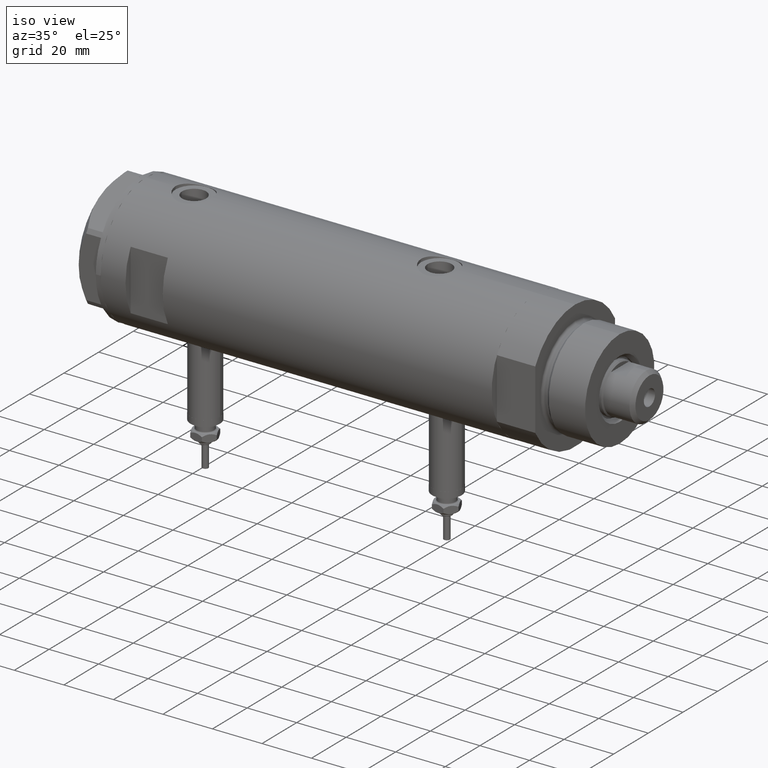
[diagram: clean part render]
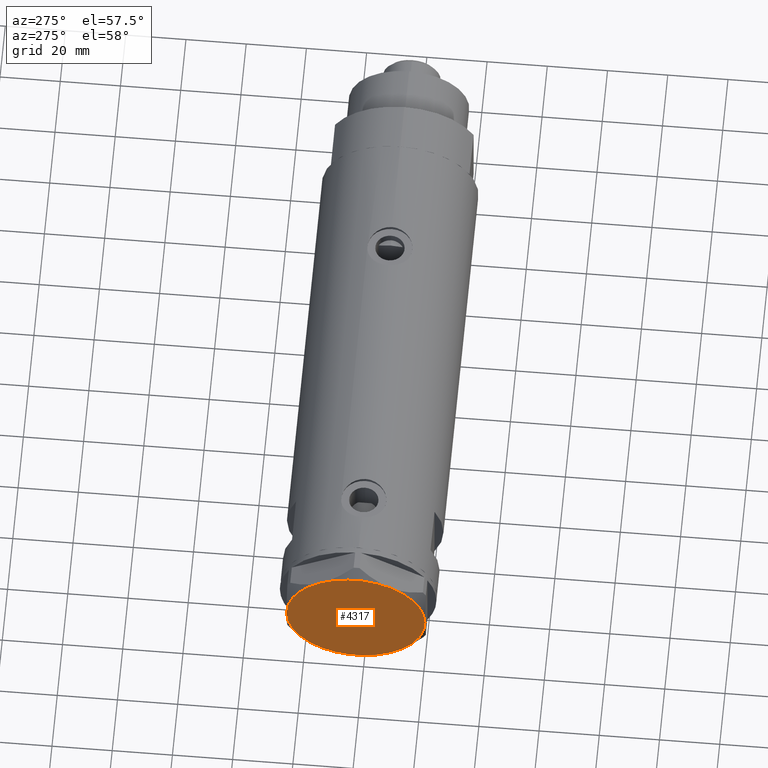
[diagram: tour spotlight — one face highlighted and labeled with its STEP entity id]
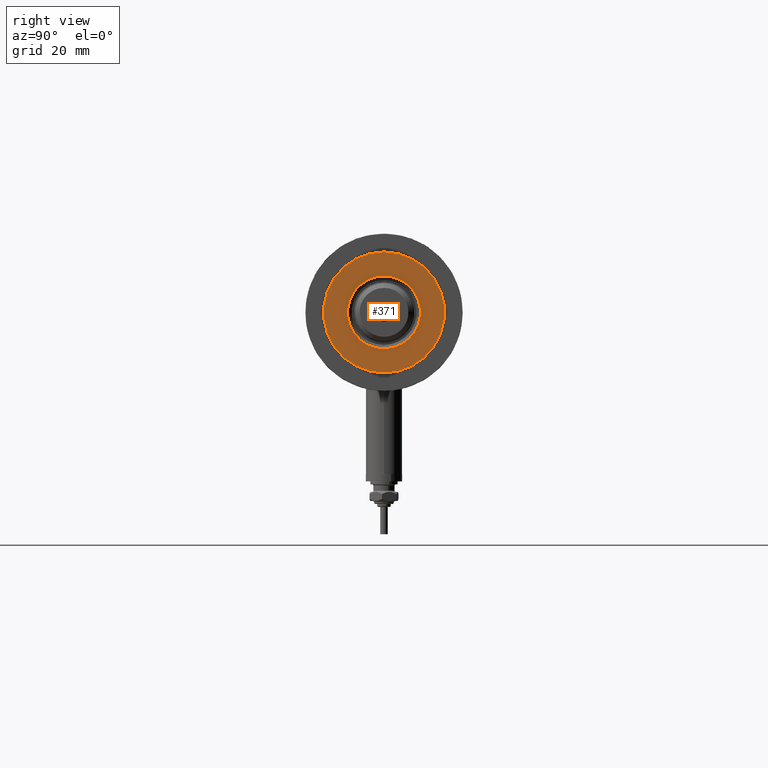
[diagram: tour spotlight — one face highlighted and labeled with its STEP entity id]
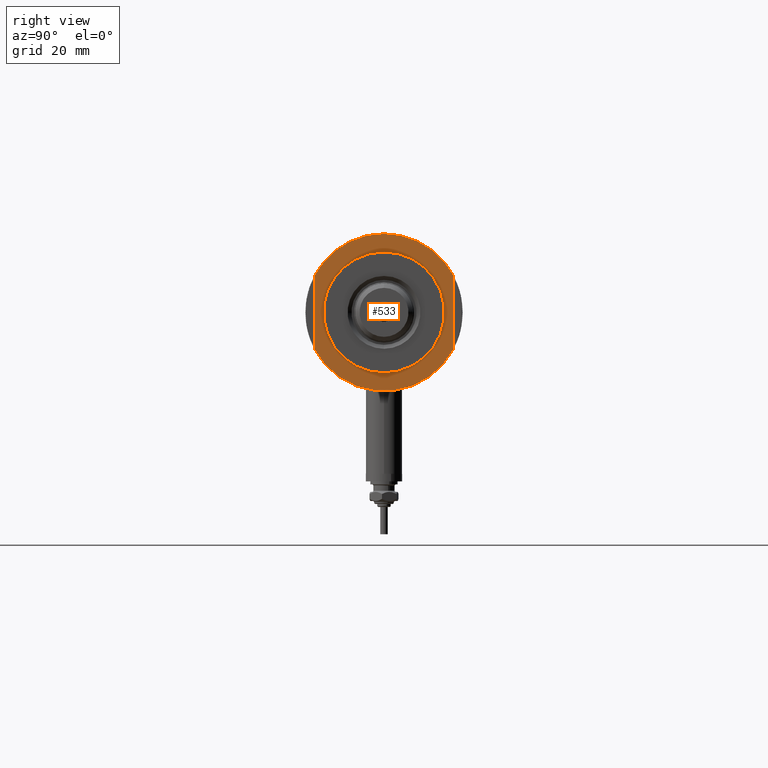
[diagram: tour spotlight — one face highlighted and labeled with its STEP entity id]
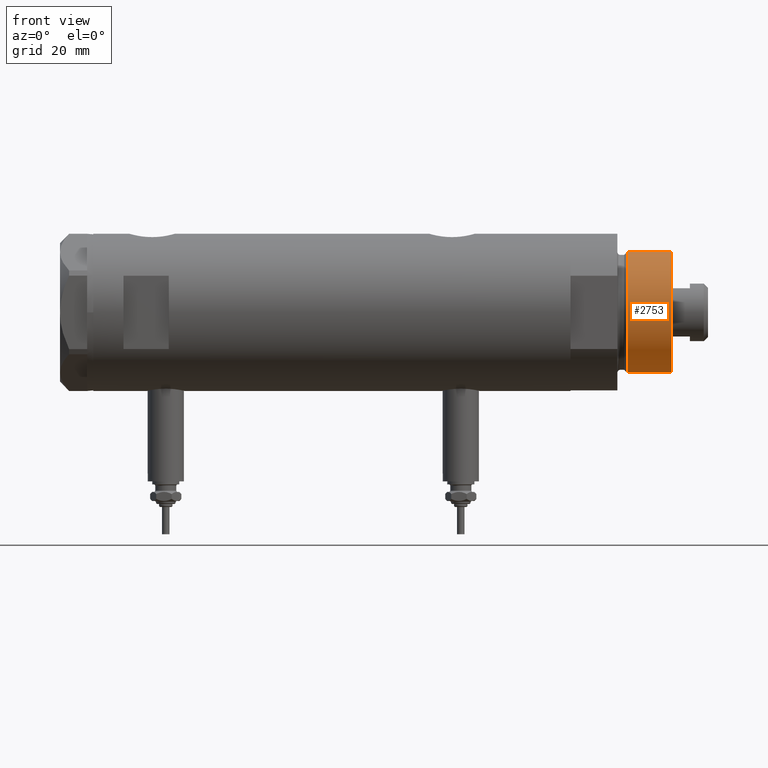
[diagram: tour spotlight — one face highlighted and labeled with its STEP entity id]
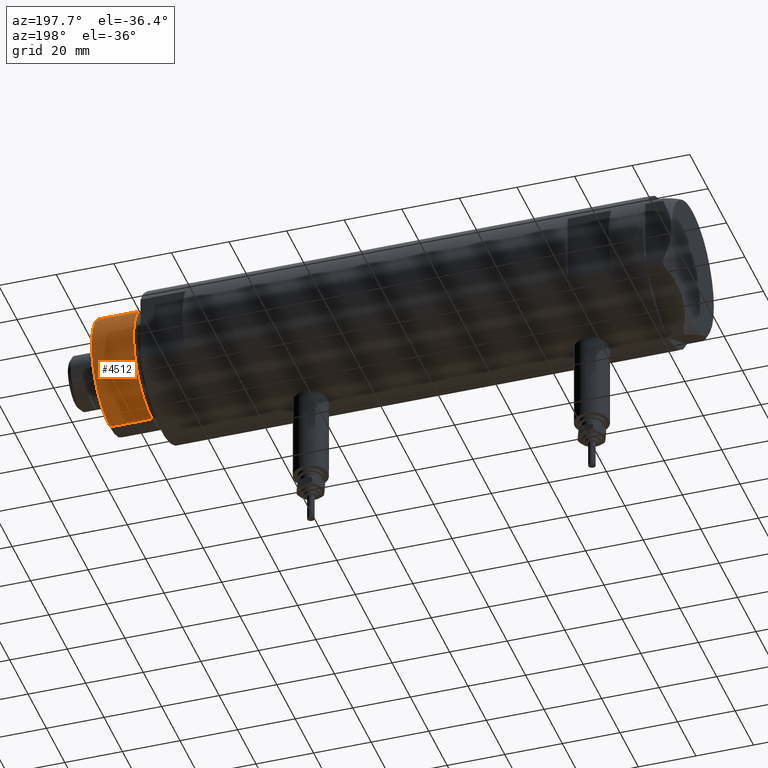
[diagram: tour spotlight — one face highlighted and labeled with its STEP entity id]
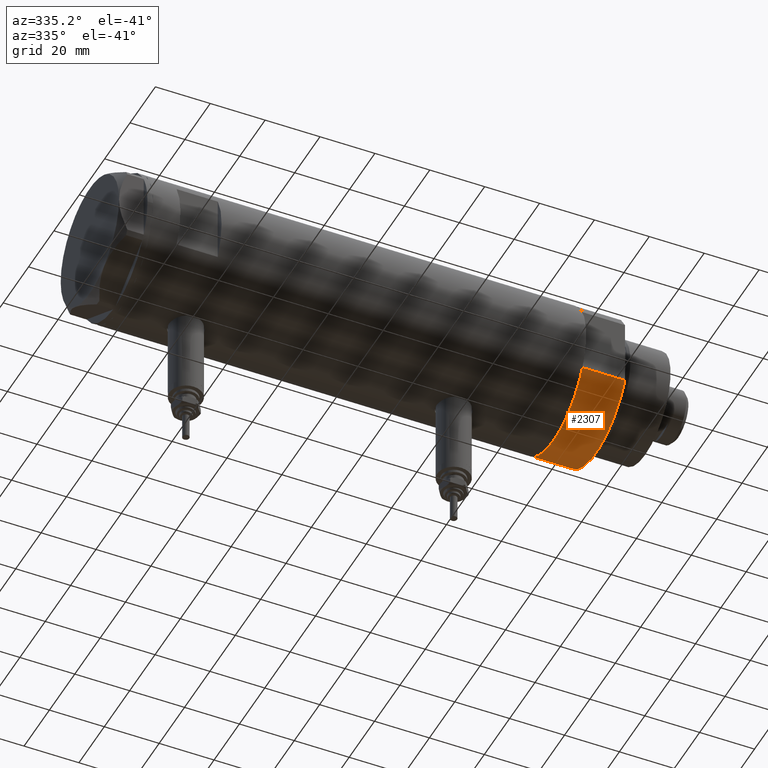
[diagram: tour spotlight — one face highlighted and labeled with its STEP entity id]
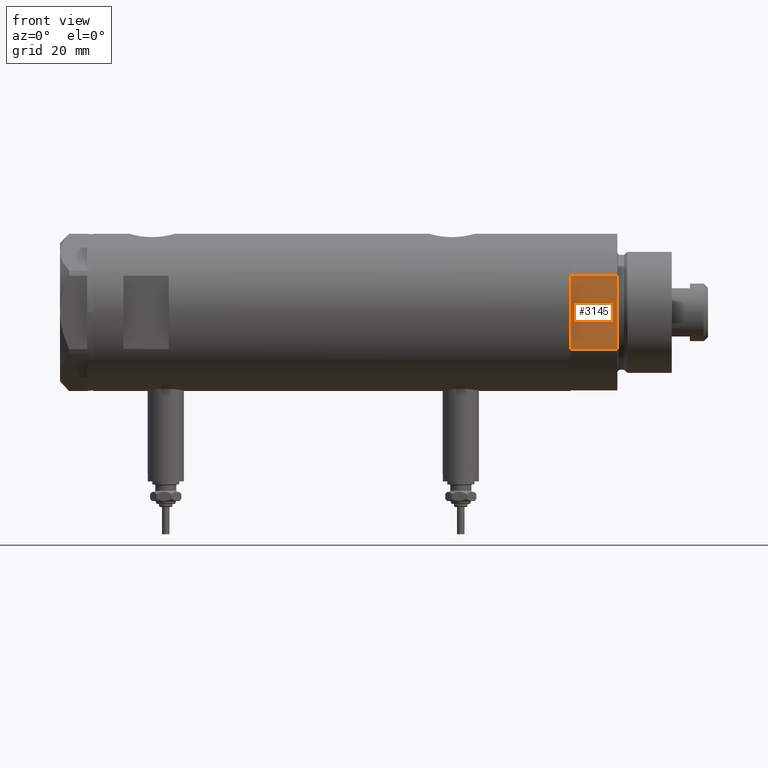
[diagram: tour spotlight — one face highlighted and labeled with its STEP entity id]
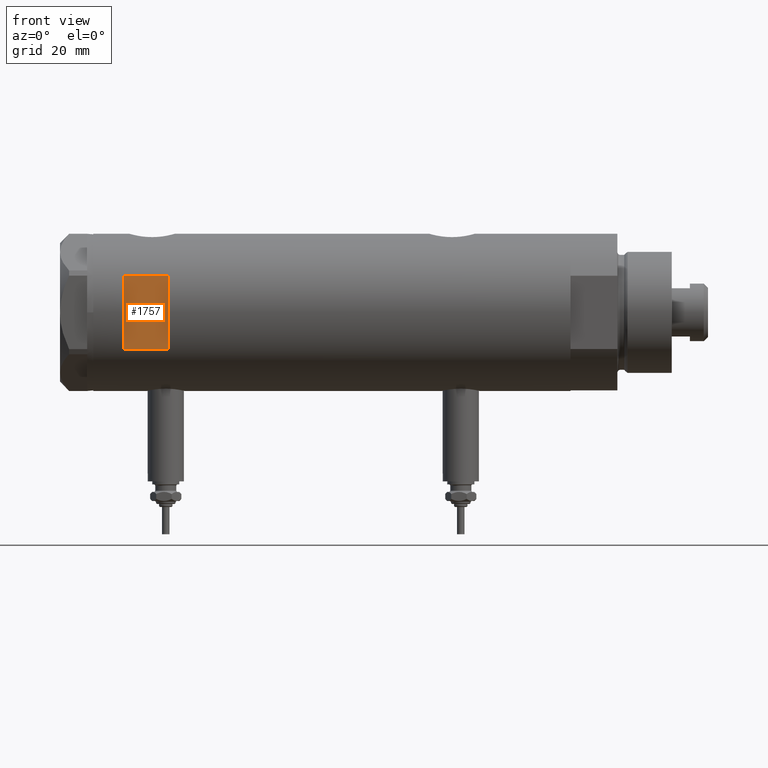
[diagram: tour spotlight — one face highlighted and labeled with its STEP entity id]
A machine part: a face-by-face anatomy tour. The part has 226 B-rep faces; the first image is the clean iso view, then the 8 largest visible faces are spotlighted one at a time (largest first), each with its STEP entity span.

Face 1 — auxiliary view, entity #4317. In plain terms, the highlighted planar face has unit normal (-1, -0, 0).
Definition (entity closure, byte-faithful):
#107 = CIRCLE ( 'NONE', #4898, 23.00000000000004619 ) ;
#368 = CARTESIAN_POINT ( 'NONE',  ( -23.00000000000004619, -8.112498833180673323E-14, 9.000000000000000000 ) ) ;
#577 = DIRECTION ( 'NONE',  ( 0.000000000000000000, 0.000000000000000000, 1.000000000000000000 ) ) ;
#792 = CARTESIAN_POINT ( 'NONE',  ( 0.000000000000000000, 0.000000000000000000, 9.000000000000000000 ) ) ;
#793 = EDGE_CURVE ( 'NONE', #3675, #4582, #3652, .T. ) ;
#1125 = ORIENTED_EDGE ( 'NONE', *, *, #1967, .T. ) ;
#1269 = DIRECTION ( 'NONE',  ( 1.000000000000000000, 0.000000000000000000, 0.000000000000000000 ) ) ;
#1467 = DIRECTION ( 'NONE',  ( 1.000000000000000000, 0.000000000000000000, 0.000000000000000000 ) ) ;
#1607 = VERTEX_POINT ( 'NONE', #2757 ) ;
#1741 = DIRECTION ( 'NONE',  ( 0.000000000000000000, 0.000000000000000000, 1.000000000000000000 ) ) ;
#1906 = CARTESIAN_POINT ( 'NONE',  ( -11.49999999999990585, -19.91858428704219364, 9.000000000000000000 ) ) ;
#1943 = DIRECTION ( 'NONE',  ( 0.000000000000000000, 0.000000000000000000, 1.000000000000000000 ) ) ;
#1967 = EDGE_CURVE ( 'NONE', #1607, #2610, #3154, .T. ) ;
#2004 = DIRECTION ( 'NONE',  ( 1.000000000000000000, 0.000000000000000000, 0.000000000000000000 ) ) ;
#2338 = AXIS2_PLACEMENT_3D ( 'NONE', #4589, #1741, #1269 ) ;
#2580 = CARTESIAN_POINT ( 'NONE',  ( 0.000000000000000000, 0.000000000000000000, 9.000000000000000000 ) ) ;
#2610 = VERTEX_POINT ( 'NONE', #4265 ) ;
#2659 = CIRCLE ( 'NONE', #4907, 23.00000000000004619 ) ;
#2720 = ORIENTED_EDGE ( 'NONE', *, *, #793, .T. ) ;
#2757 = CARTESIAN_POINT ( 'NONE',  ( 22.99999999999995026, 2.373657066004705010E-13, 9.000000000000000000 ) ) ;
#2797 = ORIENTED_EDGE ( 'NONE', *, *, #2831, .T. ) ;
#2800 = DIRECTION ( 'NONE',  ( 0.000000000000000000, 0.000000000000000000, 1.000000000000000000 ) ) ;
#2831 = EDGE_CURVE ( 'NONE', #2610, #4855, #5407, .T. ) ;
#2875 = CIRCLE ( 'NONE', #5229, 23.00000000000004619 ) ;
#2964 = EDGE_LOOP ( 'NONE', ( #4397, #1125, #2797, #3394, #3074, #2720 ) ) ;
#3028 = CARTESIAN_POINT ( 'NONE',  ( 0.000000000000000000, 0.000000000000000000, 9.000000000000000000 ) ) ;
#3074 = ORIENTED_EDGE ( 'NONE', *, *, #3820, .T. ) ;
#3112 = CARTESIAN_POINT ( 'NONE',  ( 0.000000000000000000, 0.000000000000000000, 9.000000000000000000 ) ) ;
#3154 = CIRCLE ( 'NONE', #4373, 23.00000000000004619 ) ;
#3394 = ORIENTED_EDGE ( 'NONE', *, *, #3653, .T. ) ;
#3405 = CARTESIAN_POINT ( 'NONE',  ( 0.000000000000000000, 0.000000000000000000, 9.000000000000000000 ) ) ;
#3652 = CIRCLE ( 'NONE', #4765, 23.00000000000004619 ) ;
#3653 = EDGE_CURVE ( 'NONE', #4855, #3982, #107, .T. ) ;
#3675 = VERTEX_POINT ( 'NONE', #1906 ) ;
#3737 = PLANE ( 'NONE',  #4393 ) ;
#3820 = EDGE_CURVE ( 'NONE', #3982, #3675, #2659, .T. ) ;
#3982 = VERTEX_POINT ( 'NONE', #368 ) ;
#4265 = CARTESIAN_POINT ( 'NONE',  ( 11.49999999999990408, 19.91858428704219364, 9.000000000000000000 ) ) ;
#4317 = ADVANCED_FACE ( 'NONE', ( #5206 ), #3737, .T. ) ;
#4373 = AXIS2_PLACEMENT_3D ( 'NONE', #5780, #5243, #1467 ) ;
#4393 = AXIS2_PLACEMENT_3D ( 'NONE', #792, #2800, #6192 ) ;
#4397 = ORIENTED_EDGE ( 'NONE', *, *, #5649, .T. ) ;
#4582 = VERTEX_POINT ( 'NONE', #6289 ) ;
#4589 = CARTESIAN_POINT ( 'NONE',  ( 0.000000000000000000, 0.000000000000000000, 9.000000000000000000 ) ) ;
#4724 = DIRECTION ( 'NONE',  ( 0.000000000000000000, 0.000000000000000000, 1.000000000000000000 ) ) ;
#4765 = AXIS2_PLACEMENT_3D ( 'NONE', #3028, #577, #4982 ) ;
#4816 = DIRECTION ( 'NONE',  ( 1.000000000000000000, 0.000000000000000000, 0.000000000000000000 ) ) ;
#4855 = VERTEX_POINT ( 'NONE', #6130 ) ;
#4898 = AXIS2_PLACEMENT_3D ( 'NONE', #3405, #1943, #4816 ) ;
#4907 = AXIS2_PLACEMENT_3D ( 'NONE', #2580, #5459, #2004 ) ;
#4982 = DIRECTION ( 'NONE',  ( 1.000000000000000000, 0.000000000000000000, 0.000000000000000000 ) ) ;
#5206 = FACE_OUTER_BOUND ( 'NONE', #2964, .T. ) ;
#5229 = AXIS2_PLACEMENT_3D ( 'NONE', #3112, #4724, #5270 ) ;
#5243 = DIRECTION ( 'NONE',  ( 0.000000000000000000, 0.000000000000000000, 1.000000000000000000 ) ) ;
#5270 = DIRECTION ( 'NONE',  ( 1.000000000000000000, 0.000000000000000000, 0.000000000000000000 ) ) ;
#5407 = CIRCLE ( 'NONE', #2338, 23.00000000000004619 ) ;
#5459 = DIRECTION ( 'NONE',  ( 0.000000000000000000, 0.000000000000000000, 1.000000000000000000 ) ) ;
#5649 = EDGE_CURVE ( 'NONE', #4582, #1607, #2875, .T. ) ;
#5780 = CARTESIAN_POINT ( 'NONE',  ( 0.000000000000000000, 0.000000000000000000, 9.000000000000000000 ) ) ;
#6130 = CARTESIAN_POINT ( 'NONE',  ( -11.50000000000004441, 19.91858428704211548, 9.000000000000000000 ) ) ;
#6192 = DIRECTION ( 'NONE',  ( 1.000000000000000000, 0.000000000000000000, -0.000000000000000000 ) ) ;
#6289 = CARTESIAN_POINT ( 'NONE',  ( 11.50000000000018296, -19.91858428704203732, 9.000000000000000000 ) ) ;

Face 2 — right view, entity #371. In plain terms, the highlighted planar face has unit normal (1, 0, -0).
Definition (entity closure, byte-faithful):
#38 = DIRECTION ( 'NONE',  ( 0.000000000000000000, 0.000000000000000000, 1.000000000000000000 ) ) ;
#264 = VERTEX_POINT ( 'NONE', #2983 ) ;
#277 = AXIS2_PLACEMENT_3D ( 'NONE', #2560, #38, #2109 ) ;
#335 = EDGE_CURVE ( 'NONE', #5246, #2003, #381, .T. ) ;
#371 = ADVANCED_FACE ( 'NONE', ( #3115, #689 ), #1987, .T. ) ;
#381 = CIRCLE ( 'NONE', #1602, 12.05000000000000426 ) ;
#689 = FACE_OUTER_BOUND ( 'NONE', #5387, .T. ) ;
#844 = CIRCLE ( 'NONE', #5233, 12.05000000000000426 ) ;
#1013 = VERTEX_POINT ( 'NONE', #2614 ) ;
#1324 = CARTESIAN_POINT ( 'NONE',  ( -12.05000000000000426, 1.475699392972560823E-15, 33.50000000000000000 ) ) ;
#1602 = AXIS2_PLACEMENT_3D ( 'NONE', #1997, #3941, #5478 ) ;
#1987 = PLANE ( 'NONE',  #277 ) ;
#1997 = CARTESIAN_POINT ( 'NONE',  ( 0.000000000000000000, 0.000000000000000000, 33.50000000000000000 ) ) ;
#2003 = VERTEX_POINT ( 'NONE', #3412 ) ;
#2109 = DIRECTION ( 'NONE',  ( 1.000000000000000000, 0.000000000000000000, -0.000000000000000000 ) ) ;
#2201 = CARTESIAN_POINT ( 'NONE',  ( 0.000000000000000000, 0.000000000000000000, 33.50000000000000000 ) ) ;
#2212 = CARTESIAN_POINT ( 'NONE',  ( 0.000000000000000000, 0.000000000000000000, 33.50000000000000000 ) ) ;
#2241 = EDGE_CURVE ( 'NONE', #1013, #264, #5293, .T. ) ;
#2554 = AXIS2_PLACEMENT_3D ( 'NONE', #2212, #4520, #6088 ) ;
#2560 = CARTESIAN_POINT ( 'NONE',  ( 0.000000000000000000, 0.000000000000000000, 33.50000000000000000 ) ) ;
#2614 = CARTESIAN_POINT ( 'NONE',  ( 19.99999999999999645, 2.449293598294706119E-15, 33.50000000000000000 ) ) ;
#2920 = ORIENTED_EDGE ( 'NONE', *, *, #335, .T. ) ;
#2983 = CARTESIAN_POINT ( 'NONE',  ( -19.99999999999999645, 0.000000000000000000, 33.50000000000000000 ) ) ;
#3048 = AXIS2_PLACEMENT_3D ( 'NONE', #2201, #4602, #6102 ) ;
#3115 = FACE_BOUND ( 'NONE', #6286, .T. ) ;
#3124 = DIRECTION ( 'NONE',  ( -0.000000000000000000, -0.000000000000000000, -1.000000000000000000 ) ) ;
#3186 = EDGE_CURVE ( 'NONE', #264, #1013, #5310, .T. ) ;
#3412 = CARTESIAN_POINT ( 'NONE',  ( 12.05000000000000426, 0.000000000000000000, 33.50000000000000000 ) ) ;
#3598 = ORIENTED_EDGE ( 'NONE', *, *, #3186, .T. ) ;
#3892 = ORIENTED_EDGE ( 'NONE', *, *, #6235, .T. ) ;
#3941 = DIRECTION ( 'NONE',  ( -0.000000000000000000, -0.000000000000000000, -1.000000000000000000 ) ) ;
#4459 = CARTESIAN_POINT ( 'NONE',  ( 0.000000000000000000, 0.000000000000000000, 33.50000000000000000 ) ) ;
#4520 = DIRECTION ( 'NONE',  ( 0.000000000000000000, 0.000000000000000000, 1.000000000000000000 ) ) ;
#4602 = DIRECTION ( 'NONE',  ( 0.000000000000000000, 0.000000000000000000, 1.000000000000000000 ) ) ;
#5074 = DIRECTION ( 'NONE',  ( 1.000000000000000000, 0.000000000000000000, 0.000000000000000000 ) ) ;
#5233 = AXIS2_PLACEMENT_3D ( 'NONE', #4459, #3124, #5074 ) ;
#5246 = VERTEX_POINT ( 'NONE', #1324 ) ;
#5293 = CIRCLE ( 'NONE', #3048, 19.99999999999999645 ) ;
#5310 = CIRCLE ( 'NONE', #2554, 19.99999999999999645 ) ;
#5387 = EDGE_LOOP ( 'NONE', ( #3598, #6070 ) ) ;
#5478 = DIRECTION ( 'NONE',  ( 1.000000000000000000, 0.000000000000000000, 0.000000000000000000 ) ) ;
#6070 = ORIENTED_EDGE ( 'NONE', *, *, #2241, .T. ) ;
#6088 = DIRECTION ( 'NONE',  ( 1.000000000000000000, 0.000000000000000000, 0.000000000000000000 ) ) ;
#6102 = DIRECTION ( 'NONE',  ( 1.000000000000000000, 0.000000000000000000, 0.000000000000000000 ) ) ;
#6235 = EDGE_CURVE ( 'NONE', #2003, #5246, #844, .T. ) ;
#6286 = EDGE_LOOP ( 'NONE', ( #3892, #2920 ) ) ;

Face 3 — right view, entity #533. In plain terms, the highlighted planar face has unit normal (1, 0, -0).
Definition (entity closure, byte-faithful):
#76 = CARTESIAN_POINT ( 'NONE',  ( -26.00000000000000355, 0.000000000000000000, 15.50000000000000000 ) ) ;
#81 = LINE ( 'NONE', #2001, #6123 ) ;
#243 = EDGE_CURVE ( 'NONE', #970, #1959, #1498, .T. ) ;
#272 = DIRECTION ( 'NONE',  ( 1.000000000000000000, 0.000000000000000000, 0.000000000000000000 ) ) ;
#373 = EDGE_CURVE ( 'NONE', #5544, #522, #3035, .T. ) ;
#522 = VERTEX_POINT ( 'NONE', #1284 ) ;
#533 = ADVANCED_FACE ( 'NONE', ( #4606, #2178 ), #6139, .T. ) ;
#536 = DIRECTION ( 'NONE',  ( 1.000000000000000000, 0.000000000000000000, 0.000000000000000000 ) ) ;
#970 = VERTEX_POINT ( 'NONE', #1249 ) ;
#1052 = EDGE_LOOP ( 'NONE', ( #5471, #6302, #3037, #2693, #1229 ) ) ;
#1229 = ORIENTED_EDGE ( 'NONE', *, *, #4394, .T. ) ;
#1246 = EDGE_CURVE ( 'NONE', #1959, #970, #2223, .T. ) ;
#1249 = CARTESIAN_POINT ( 'NONE',  ( 20.00000000000000000, 0.000000000000000000, 15.50000000000000000 ) ) ;
#1284 = CARTESIAN_POINT ( 'NONE',  ( -12.12435565298215323, -22.99999999999999645, 15.50000000000000000 ) ) ;
#1456 = EDGE_CURVE ( 'NONE', #4543, #4132, #3965, .T. ) ;
#1498 = CIRCLE ( 'NONE', #3559, 20.00000000000000000 ) ;
#1541 = CIRCLE ( 'NONE', #2966, 26.00000000000000355 ) ;
#1761 = CARTESIAN_POINT ( 'NONE',  ( 12.12435565298215323, -22.99999999999999645, 15.50000000000000000 ) ) ;
#1848 = DIRECTION ( 'NONE',  ( 0.000000000000000000, 0.000000000000000000, 1.000000000000000000 ) ) ;
#1959 = VERTEX_POINT ( 'NONE', #3385 ) ;
#2001 = CARTESIAN_POINT ( 'NONE',  ( -12.12435565298215145, 23.00000000000000355, 15.50000000000000000 ) ) ;
#2178 = FACE_OUTER_BOUND ( 'NONE', #1052, .T. ) ;
#2223 = CIRCLE ( 'NONE', #3553, 20.00000000000000000 ) ;
#2373 = EDGE_LOOP ( 'NONE', ( #2689, #3451 ) ) ;
#2565 = CARTESIAN_POINT ( 'NONE',  ( 12.12435565298214790, 23.00000000000000355, 15.50000000000000000 ) ) ;
#2689 = ORIENTED_EDGE ( 'NONE', *, *, #243, .T. ) ;
#2693 = ORIENTED_EDGE ( 'NONE', *, *, #1456, .T. ) ;
#2698 = CARTESIAN_POINT ( 'NONE',  ( 0.000000000000000000, 0.000000000000000000, 15.50000000000000000 ) ) ;
#2708 = DIRECTION ( 'NONE',  ( 1.000000000000000000, 0.000000000000000000, 0.000000000000000000 ) ) ;
#2741 = CARTESIAN_POINT ( 'NONE',  ( 0.000000000000000000, 0.000000000000000000, 15.50000000000000000 ) ) ;
#2747 = EDGE_CURVE ( 'NONE', #4543, #5487, #81, .T. ) ;
#2816 = DIRECTION ( 'NONE',  ( 1.000000000000000000, 0.000000000000000000, 0.000000000000000000 ) ) ;
#2933 = DIRECTION ( 'NONE',  ( -1.000000000000000000, -0.000000000000000000, -0.000000000000000000 ) ) ;
#2966 = AXIS2_PLACEMENT_3D ( 'NONE', #4270, #1848, #2708 ) ;
#3035 = LINE ( 'NONE', #4061, #3841 ) ;
#3037 = ORIENTED_EDGE ( 'NONE', *, *, #2747, .F. ) ;
#3133 = DIRECTION ( 'NONE',  ( 0.000000000000000000, 0.000000000000000000, 1.000000000000000000 ) ) ;
#3302 = DIRECTION ( 'NONE',  ( 0.000000000000000000, 0.000000000000000000, 1.000000000000000000 ) ) ;
#3385 = CARTESIAN_POINT ( 'NONE',  ( -20.00000000000000000, 2.449293598294706513E-15, 15.50000000000000000 ) ) ;
#3439 = AXIS2_PLACEMENT_3D ( 'NONE', #2741, #3133, #6169 ) ;
#3451 = ORIENTED_EDGE ( 'NONE', *, *, #1246, .T. ) ;
#3465 = DIRECTION ( 'NONE',  ( -0.000000000000000000, -0.000000000000000000, -1.000000000000000000 ) ) ;
#3477 = CIRCLE ( 'NONE', #6037, 26.00000000000000355 ) ;
#3553 = AXIS2_PLACEMENT_3D ( 'NONE', #4396, #3465, #5968 ) ;
#3559 = AXIS2_PLACEMENT_3D ( 'NONE', #5414, #4966, #4041 ) ;
#3841 = VECTOR ( 'NONE', #2933, 1000.000000000000000 ) ;
#3965 = CIRCLE ( 'NONE', #6207, 26.00000000000000355 ) ;
#4030 = EDGE_CURVE ( 'NONE', #5544, #5487, #3477, .T. ) ;
#4041 = DIRECTION ( 'NONE',  ( 1.000000000000000000, 0.000000000000000000, 0.000000000000000000 ) ) ;
#4046 = DIRECTION ( 'NONE',  ( 0.000000000000000000, 0.000000000000000000, 1.000000000000000000 ) ) ;
#4061 = CARTESIAN_POINT ( 'NONE',  ( -12.12435565298215145, -22.99999999999999645, 15.50000000000000000 ) ) ;
#4132 = VERTEX_POINT ( 'NONE', #76 ) ;
#4270 = CARTESIAN_POINT ( 'NONE',  ( 0.000000000000000000, 0.000000000000000000, 15.50000000000000000 ) ) ;
#4306 = CARTESIAN_POINT ( 'NONE',  ( -12.12435565298214613, 23.00000000000000355, 15.50000000000000000 ) ) ;
#4394 = EDGE_CURVE ( 'NONE', #4132, #522, #1541, .T. ) ;
#4396 = CARTESIAN_POINT ( 'NONE',  ( 0.000000000000000000, 0.000000000000000000, 15.50000000000000000 ) ) ;
#4543 = VERTEX_POINT ( 'NONE', #4306 ) ;
#4606 = FACE_BOUND ( 'NONE', #2373, .T. ) ;
#4966 = DIRECTION ( 'NONE',  ( -0.000000000000000000, -0.000000000000000000, -1.000000000000000000 ) ) ;
#5414 = CARTESIAN_POINT ( 'NONE',  ( 0.000000000000000000, 0.000000000000000000, 15.50000000000000000 ) ) ;
#5471 = ORIENTED_EDGE ( 'NONE', *, *, #373, .F. ) ;
#5487 = VERTEX_POINT ( 'NONE', #2565 ) ;
#5544 = VERTEX_POINT ( 'NONE', #1761 ) ;
#5968 = DIRECTION ( 'NONE',  ( 1.000000000000000000, 0.000000000000000000, 0.000000000000000000 ) ) ;
#6037 = AXIS2_PLACEMENT_3D ( 'NONE', #6212, #3302, #2816 ) ;
#6123 = VECTOR ( 'NONE', #536, 1000.000000000000000 ) ;
#6139 = PLANE ( 'NONE',  #3439 ) ;
#6169 = DIRECTION ( 'NONE',  ( 1.000000000000000000, 0.000000000000000000, -0.000000000000000000 ) ) ;
#6207 = AXIS2_PLACEMENT_3D ( 'NONE', #2698, #4046, #272 ) ;
#6212 = CARTESIAN_POINT ( 'NONE',  ( 0.000000000000000000, 0.000000000000000000, 15.50000000000000000 ) ) ;
#6302 = ORIENTED_EDGE ( 'NONE', *, *, #4030, .T. ) ;

Face 4 — front view, entity #2753. In plain terms, the highlighted cylindrical surface (partial cylindrical patch) has radius 20 mm, axis along (-1, -0, 0).
Definition (entity closure, byte-faithful):
#264 = VERTEX_POINT ( 'NONE', #2983 ) ;
#765 = DIRECTION ( 'NONE',  ( -0.000000000000000000, -0.000000000000000000, -1.000000000000000000 ) ) ;
#836 = AXIS2_PLACEMENT_3D ( 'NONE', #2323, #2626, #5750 ) ;
#1013 = VERTEX_POINT ( 'NONE', #2614 ) ;
#1019 = AXIS2_PLACEMENT_3D ( 'NONE', #2448, #3051, #4395 ) ;
#1064 = EDGE_LOOP ( 'NONE', ( #6150, #2581, #2088, #3908 ) ) ;
#1150 = CARTESIAN_POINT ( 'NONE',  ( -19.99999999999999645, 0.000000000000000000, 18.87384048104053846 ) ) ;
#1414 = LINE ( 'NONE', #2305, #3874 ) ;
#1583 = FACE_OUTER_BOUND ( 'NONE', #1064, .T. ) ;
#2088 = ORIENTED_EDGE ( 'NONE', *, *, #3540, .T. ) ;
#2212 = CARTESIAN_POINT ( 'NONE',  ( 0.000000000000000000, 0.000000000000000000, 33.50000000000000000 ) ) ;
#2305 = CARTESIAN_POINT ( 'NONE',  ( 19.99999999999999645, 2.449293598294706119E-15, 33.50000000000000000 ) ) ;
#2323 = CARTESIAN_POINT ( 'NONE',  ( 0.000000000000000000, 0.000000000000000000, 18.87384048104053846 ) ) ;
#2448 = CARTESIAN_POINT ( 'NONE',  ( 0.000000000000000000, 0.000000000000000000, 33.50000000000000000 ) ) ;
#2554 = AXIS2_PLACEMENT_3D ( 'NONE', #2212, #4520, #6088 ) ;
#2581 = ORIENTED_EDGE ( 'NONE', *, *, #3186, .F. ) ;
#2614 = CARTESIAN_POINT ( 'NONE',  ( 19.99999999999999645, 2.449293598294706119E-15, 33.50000000000000000 ) ) ;
#2626 = DIRECTION ( 'NONE',  ( -0.000000000000000000, -0.000000000000000000, 1.000000000000000000 ) ) ;
#2753 = ADVANCED_FACE ( 'NONE', ( #1583 ), #5482, .T. ) ;
#2983 = CARTESIAN_POINT ( 'NONE',  ( -19.99999999999999645, 0.000000000000000000, 33.50000000000000000 ) ) ;
#3018 = EDGE_CURVE ( 'NONE', #1013, #4702, #1414, .T. ) ;
#3051 = DIRECTION ( 'NONE',  ( -0.000000000000000000, -0.000000000000000000, -1.000000000000000000 ) ) ;
#3156 = CARTESIAN_POINT ( 'NONE',  ( -19.99999999999999645, 0.000000000000000000, 33.50000000000000000 ) ) ;
#3186 = EDGE_CURVE ( 'NONE', #264, #1013, #5310, .T. ) ;
#3540 = EDGE_CURVE ( 'NONE', #264, #4674, #3906, .T. ) ;
#3602 = CIRCLE ( 'NONE', #836, 19.99999999999999645 ) ;
#3874 = VECTOR ( 'NONE', #4255, 1000.000000000000000 ) ;
#3906 = LINE ( 'NONE', #3156, #4797 ) ;
#3908 = ORIENTED_EDGE ( 'NONE', *, *, #5574, .T. ) ;
#4255 = DIRECTION ( 'NONE',  ( -0.000000000000000000, -0.000000000000000000, -1.000000000000000000 ) ) ;
#4395 = DIRECTION ( 'NONE',  ( -1.000000000000000000, 0.000000000000000000, 0.000000000000000000 ) ) ;
#4520 = DIRECTION ( 'NONE',  ( 0.000000000000000000, 0.000000000000000000, 1.000000000000000000 ) ) ;
#4674 = VERTEX_POINT ( 'NONE', #1150 ) ;
#4702 = VERTEX_POINT ( 'NONE', #5462 ) ;
#4797 = VECTOR ( 'NONE', #765, 1000.000000000000000 ) ;
#5310 = CIRCLE ( 'NONE', #2554, 19.99999999999999645 ) ;
#5462 = CARTESIAN_POINT ( 'NONE',  ( 19.99999999999999645, 2.449293598294706119E-15, 18.87384048104053846 ) ) ;
#5482 = CYLINDRICAL_SURFACE ( 'NONE', #1019, 19.99999999999999645 ) ;
#5574 = EDGE_CURVE ( 'NONE', #4674, #4702, #3602, .T. ) ;
#5750 = DIRECTION ( 'NONE',  ( 1.000000000000000000, 0.000000000000000000, 0.000000000000000000 ) ) ;
#6088 = DIRECTION ( 'NONE',  ( 1.000000000000000000, 0.000000000000000000, 0.000000000000000000 ) ) ;
#6150 = ORIENTED_EDGE ( 'NONE', *, *, #3018, .F. ) ;

Face 5 — auxiliary view, entity #4512. In plain terms, the highlighted cylindrical surface (partial cylindrical patch) has radius 20 mm, axis along (-1, -0, 0).
Definition (entity closure, byte-faithful):
#60 = DIRECTION ( 'NONE',  ( -1.000000000000000000, 0.000000000000000000, 0.000000000000000000 ) ) ;
#72 = CARTESIAN_POINT ( 'NONE',  ( 0.000000000000000000, 0.000000000000000000, 18.87384048104053846 ) ) ;
#264 = VERTEX_POINT ( 'NONE', #2983 ) ;
#765 = DIRECTION ( 'NONE',  ( -0.000000000000000000, -0.000000000000000000, -1.000000000000000000 ) ) ;
#1013 = VERTEX_POINT ( 'NONE', #2614 ) ;
#1150 = CARTESIAN_POINT ( 'NONE',  ( -19.99999999999999645, 0.000000000000000000, 18.87384048104053846 ) ) ;
#1414 = LINE ( 'NONE', #2305, #3874 ) ;
#1462 = CYLINDRICAL_SURFACE ( 'NONE', #4808, 19.99999999999999645 ) ;
#2081 = ORIENTED_EDGE ( 'NONE', *, *, #3540, .F. ) ;
#2201 = CARTESIAN_POINT ( 'NONE',  ( 0.000000000000000000, 0.000000000000000000, 33.50000000000000000 ) ) ;
#2241 = EDGE_CURVE ( 'NONE', #1013, #264, #5293, .T. ) ;
#2305 = CARTESIAN_POINT ( 'NONE',  ( 19.99999999999999645, 2.449293598294706119E-15, 33.50000000000000000 ) ) ;
#2490 = DIRECTION ( 'NONE',  ( -0.000000000000000000, -0.000000000000000000, -1.000000000000000000 ) ) ;
#2576 = CIRCLE ( 'NONE', #4821, 19.99999999999999645 ) ;
#2614 = CARTESIAN_POINT ( 'NONE',  ( 19.99999999999999645, 2.449293598294706119E-15, 33.50000000000000000 ) ) ;
#2622 = ORIENTED_EDGE ( 'NONE', *, *, #2241, .F. ) ;
#2983 = CARTESIAN_POINT ( 'NONE',  ( -19.99999999999999645, 0.000000000000000000, 33.50000000000000000 ) ) ;
#3018 = EDGE_CURVE ( 'NONE', #1013, #4702, #1414, .T. ) ;
#3041 = DIRECTION ( 'NONE',  ( -0.000000000000000000, -0.000000000000000000, 1.000000000000000000 ) ) ;
#3048 = AXIS2_PLACEMENT_3D ( 'NONE', #2201, #4602, #6102 ) ;
#3156 = CARTESIAN_POINT ( 'NONE',  ( -19.99999999999999645, 0.000000000000000000, 33.50000000000000000 ) ) ;
#3466 = EDGE_LOOP ( 'NONE', ( #2622, #6010, #4238, #2081 ) ) ;
#3540 = EDGE_CURVE ( 'NONE', #264, #4674, #3906, .T. ) ;
#3874 = VECTOR ( 'NONE', #4255, 1000.000000000000000 ) ;
#3906 = LINE ( 'NONE', #3156, #4797 ) ;
#4238 = ORIENTED_EDGE ( 'NONE', *, *, #5454, .T. ) ;
#4255 = DIRECTION ( 'NONE',  ( -0.000000000000000000, -0.000000000000000000, -1.000000000000000000 ) ) ;
#4512 = ADVANCED_FACE ( 'NONE', ( #4850 ), #1462, .T. ) ;
#4602 = DIRECTION ( 'NONE',  ( 0.000000000000000000, 0.000000000000000000, 1.000000000000000000 ) ) ;
#4674 = VERTEX_POINT ( 'NONE', #1150 ) ;
#4702 = VERTEX_POINT ( 'NONE', #5462 ) ;
#4797 = VECTOR ( 'NONE', #765, 1000.000000000000000 ) ;
#4808 = AXIS2_PLACEMENT_3D ( 'NONE', #5333, #2490, #60 ) ;
#4821 = AXIS2_PLACEMENT_3D ( 'NONE', #72, #3041, #4933 ) ;
#4850 = FACE_OUTER_BOUND ( 'NONE', #3466, .T. ) ;
#4933 = DIRECTION ( 'NONE',  ( 1.000000000000000000, 0.000000000000000000, 0.000000000000000000 ) ) ;
#5293 = CIRCLE ( 'NONE', #3048, 19.99999999999999645 ) ;
#5333 = CARTESIAN_POINT ( 'NONE',  ( 0.000000000000000000, 0.000000000000000000, 33.50000000000000000 ) ) ;
#5454 = EDGE_CURVE ( 'NONE', #4702, #4674, #2576, .T. ) ;
#5462 = CARTESIAN_POINT ( 'NONE',  ( 19.99999999999999645, 2.449293598294706119E-15, 18.87384048104053846 ) ) ;
#6010 = ORIENTED_EDGE ( 'NONE', *, *, #3018, .T. ) ;
#6102 = DIRECTION ( 'NONE',  ( 1.000000000000000000, 0.000000000000000000, 0.000000000000000000 ) ) ;

Face 6 — auxiliary view, entity #2307. In plain terms, the highlighted cylindrical surface (partial cylindrical patch) has radius 26 mm, axis along (-1, -0, 0).
Definition (entity closure, byte-faithful):
#195 = AXIS2_PLACEMENT_3D ( 'NONE', #1379, #4281, #5276 ) ;
#333 = CIRCLE ( 'NONE', #2773, 26.00000000000000355 ) ;
#586 = DIRECTION ( 'NONE',  ( 0.000000000000000000, 0.000000000000000000, 1.000000000000000000 ) ) ;
#872 = EDGE_CURVE ( 'NONE', #4532, #5544, #1983, .T. ) ;
#931 = CYLINDRICAL_SURFACE ( 'NONE', #195, 26.00000000000000355 ) ;
#959 = CARTESIAN_POINT ( 'NONE',  ( 12.12435565298215323, -22.99999999999999645, 0.000000000000000000 ) ) ;
#1379 = CARTESIAN_POINT ( 'NONE',  ( 0.000000000000000000, 0.000000000000000000, 15.50000000000000000 ) ) ;
#1613 = CARTESIAN_POINT ( 'NONE',  ( 12.12435565298215323, 23.00000000000000355, 0.000000000000000000 ) ) ;
#1761 = CARTESIAN_POINT ( 'NONE',  ( 12.12435565298215323, -22.99999999999999645, 15.50000000000000000 ) ) ;
#1937 = VECTOR ( 'NONE', #5135, 1000.000000000000000 ) ;
#1983 = LINE ( 'NONE', #3926, #4872 ) ;
#2022 = CARTESIAN_POINT ( 'NONE',  ( 0.000000000000000000, 0.000000000000000000, 0.000000000000000000 ) ) ;
#2096 = ORIENTED_EDGE ( 'NONE', *, *, #872, .F. ) ;
#2307 = ADVANCED_FACE ( 'NONE', ( #4378 ), #931, .T. ) ;
#2565 = CARTESIAN_POINT ( 'NONE',  ( 12.12435565298214790, 23.00000000000000355, 15.50000000000000000 ) ) ;
#2773 = AXIS2_PLACEMENT_3D ( 'NONE', #2022, #586, #5922 ) ;
#2816 = DIRECTION ( 'NONE',  ( 1.000000000000000000, 0.000000000000000000, 0.000000000000000000 ) ) ;
#2837 = EDGE_LOOP ( 'NONE', ( #3136, #2096, #4019, #3527 ) ) ;
#2856 = EDGE_CURVE ( 'NONE', #5019, #5487, #5994, .T. ) ;
#3136 = ORIENTED_EDGE ( 'NONE', *, *, #4030, .F. ) ;
#3302 = DIRECTION ( 'NONE',  ( 0.000000000000000000, 0.000000000000000000, 1.000000000000000000 ) ) ;
#3477 = CIRCLE ( 'NONE', #6037, 26.00000000000000355 ) ;
#3527 = ORIENTED_EDGE ( 'NONE', *, *, #2856, .T. ) ;
#3926 = CARTESIAN_POINT ( 'NONE',  ( 12.12435565298215323, -22.99999999999999645, 0.000000000000000000 ) ) ;
#4019 = ORIENTED_EDGE ( 'NONE', *, *, #5464, .T. ) ;
#4030 = EDGE_CURVE ( 'NONE', #5544, #5487, #3477, .T. ) ;
#4281 = DIRECTION ( 'NONE',  ( -0.000000000000000000, -0.000000000000000000, -1.000000000000000000 ) ) ;
#4378 = FACE_OUTER_BOUND ( 'NONE', #2837, .T. ) ;
#4527 = CARTESIAN_POINT ( 'NONE',  ( 12.12435565298214080, 23.00000000000000355, 0.000000000000000000 ) ) ;
#4532 = VERTEX_POINT ( 'NONE', #959 ) ;
#4872 = VECTOR ( 'NONE', #5431, 1000.000000000000000 ) ;
#5019 = VERTEX_POINT ( 'NONE', #4527 ) ;
#5135 = DIRECTION ( 'NONE',  ( -0.000000000000000000, -0.000000000000000000, 1.000000000000000000 ) ) ;
#5276 = DIRECTION ( 'NONE',  ( -1.000000000000000000, 0.000000000000000000, 0.000000000000000000 ) ) ;
#5431 = DIRECTION ( 'NONE',  ( -0.000000000000000000, -0.000000000000000000, 1.000000000000000000 ) ) ;
#5464 = EDGE_CURVE ( 'NONE', #4532, #5019, #333, .T. ) ;
#5487 = VERTEX_POINT ( 'NONE', #2565 ) ;
#5544 = VERTEX_POINT ( 'NONE', #1761 ) ;
#5922 = DIRECTION ( 'NONE',  ( 1.000000000000000000, 0.000000000000000000, 0.000000000000000000 ) ) ;
#5994 = LINE ( 'NONE', #1613, #1937 ) ;
#6037 = AXIS2_PLACEMENT_3D ( 'NONE', #6212, #3302, #2816 ) ;
#6212 = CARTESIAN_POINT ( 'NONE',  ( 0.000000000000000000, 0.000000000000000000, 15.50000000000000000 ) ) ;

Face 7 — front view, entity #3145. In plain terms, the highlighted planar face has unit normal (-0, 1, 0).
Definition (entity closure, byte-faithful):
#11 = VERTEX_POINT ( 'NONE', #1480 ) ;
#373 = EDGE_CURVE ( 'NONE', #5544, #522, #3035, .T. ) ;
#410 = ORIENTED_EDGE ( 'NONE', *, *, #373, .T. ) ;
#423 = EDGE_LOOP ( 'NONE', ( #410, #1403, #4456, #4432 ) ) ;
#522 = VERTEX_POINT ( 'NONE', #1284 ) ;
#872 = EDGE_CURVE ( 'NONE', #4532, #5544, #1983, .T. ) ;
#917 = AXIS2_PLACEMENT_3D ( 'NONE', #3560, #6116, #4160 ) ;
#959 = CARTESIAN_POINT ( 'NONE',  ( 12.12435565298215323, -22.99999999999999645, 0.000000000000000000 ) ) ;
#1036 = EDGE_CURVE ( 'NONE', #11, #522, #3579, .T. ) ;
#1155 = DIRECTION ( 'NONE',  ( -0.000000000000000000, -0.000000000000000000, 1.000000000000000000 ) ) ;
#1284 = CARTESIAN_POINT ( 'NONE',  ( -12.12435565298215323, -22.99999999999999645, 15.50000000000000000 ) ) ;
#1403 = ORIENTED_EDGE ( 'NONE', *, *, #1036, .F. ) ;
#1480 = CARTESIAN_POINT ( 'NONE',  ( -12.12435565298215501, -22.99999999999999645, 0.000000000000000000 ) ) ;
#1506 = VECTOR ( 'NONE', #1155, 1000.000000000000000 ) ;
#1581 = EDGE_CURVE ( 'NONE', #4532, #11, #5669, .T. ) ;
#1642 = PLANE ( 'NONE',  #917 ) ;
#1761 = CARTESIAN_POINT ( 'NONE',  ( 12.12435565298215323, -22.99999999999999645, 15.50000000000000000 ) ) ;
#1802 = CARTESIAN_POINT ( 'NONE',  ( -12.12435565298215145, -22.99999999999999645, 0.000000000000000000 ) ) ;
#1983 = LINE ( 'NONE', #3926, #4872 ) ;
#2086 = FACE_OUTER_BOUND ( 'NONE', #423, .T. ) ;
#2933 = DIRECTION ( 'NONE',  ( -1.000000000000000000, -0.000000000000000000, -0.000000000000000000 ) ) ;
#3035 = LINE ( 'NONE', #4061, #3841 ) ;
#3145 = ADVANCED_FACE ( 'NONE', ( #2086 ), #1642, .F. ) ;
#3560 = CARTESIAN_POINT ( 'NONE',  ( -12.12435565298215145, -22.99999999999999645, 0.000000000000000000 ) ) ;
#3579 = LINE ( 'NONE', #4566, #1506 ) ;
#3723 = DIRECTION ( 'NONE',  ( -1.000000000000000000, -0.000000000000000000, -0.000000000000000000 ) ) ;
#3841 = VECTOR ( 'NONE', #2933, 1000.000000000000000 ) ;
#3926 = CARTESIAN_POINT ( 'NONE',  ( 12.12435565298215323, -22.99999999999999645, 0.000000000000000000 ) ) ;
#4061 = CARTESIAN_POINT ( 'NONE',  ( -12.12435565298215145, -22.99999999999999645, 15.50000000000000000 ) ) ;
#4160 = DIRECTION ( 'NONE',  ( 0.000000000000000000, -0.000000000000000000, 1.000000000000000000 ) ) ;
#4432 = ORIENTED_EDGE ( 'NONE', *, *, #872, .T. ) ;
#4456 = ORIENTED_EDGE ( 'NONE', *, *, #1581, .F. ) ;
#4532 = VERTEX_POINT ( 'NONE', #959 ) ;
#4566 = CARTESIAN_POINT ( 'NONE',  ( -12.12435565298215145, -22.99999999999999645, 0.000000000000000000 ) ) ;
#4872 = VECTOR ( 'NONE', #5431, 1000.000000000000000 ) ;
#5290 = VECTOR ( 'NONE', #3723, 1000.000000000000000 ) ;
#5431 = DIRECTION ( 'NONE',  ( -0.000000000000000000, -0.000000000000000000, 1.000000000000000000 ) ) ;
#5544 = VERTEX_POINT ( 'NONE', #1761 ) ;
#5669 = LINE ( 'NONE', #1802, #5290 ) ;
#6116 = DIRECTION ( 'NONE',  ( -0.000000000000000000, 1.000000000000000000, 0.000000000000000000 ) ) ;

Face 8 — front view, entity #1757. In plain terms, the highlighted planar face has unit normal (-0, 1, 0).
Definition (entity closure, byte-faithful):
#34 = LINE ( 'NONE', #2963, #2646 ) ;
#443 = VERTEX_POINT ( 'NONE', #1093 ) ;
#605 = CARTESIAN_POINT ( 'NONE',  ( -26.00000000000000355, -23.00000000000000355, 53.95000000000002416 ) ) ;
#1093 = CARTESIAN_POINT ( 'NONE',  ( -12.12435565298214080, -23.00000000000000355, 68.95000000000003126 ) ) ;
#1248 = VECTOR ( 'NONE', #2549, 1000.000000000000000 ) ;
#1266 = ORIENTED_EDGE ( 'NONE', *, *, #2171, .F. ) ;
#1457 = CARTESIAN_POINT ( 'NONE',  ( -12.12435565298214080, -23.00000000000000355, 53.95000000000001705 ) ) ;
#1569 = DIRECTION ( 'NONE',  ( 0.000000000000000000, 1.000000000000000000, 0.000000000000000000 ) ) ;
#1757 = ADVANCED_FACE ( 'NONE', ( #4839 ), #4958, .F. ) ;
#1859 = VECTOR ( 'NONE', #3421, 1000.000000000000000 ) ;
#1984 = DIRECTION ( 'NONE',  ( 1.000000000000000000, -0.000000000000000000, -0.000000000000000000 ) ) ;
#2171 = EDGE_CURVE ( 'NONE', #443, #3680, #34, .T. ) ;
#2374 = VECTOR ( 'NONE', #3577, 1000.000000000000000 ) ;
#2407 = DIRECTION ( 'NONE',  ( 0.000000000000000000, -0.000000000000000000, 1.000000000000000000 ) ) ;
#2436 = CARTESIAN_POINT ( 'NONE',  ( -12.12435565298214080, -23.00000000000000355, -78.95000000000000284 ) ) ;
#2549 = DIRECTION ( 'NONE',  ( 1.000000000000000000, -0.000000000000000000, -0.000000000000000000 ) ) ;
#2612 = LINE ( 'NONE', #605, #1248 ) ;
#2646 = VECTOR ( 'NONE', #1984, 1000.000000000000000 ) ;
#2779 = VERTEX_POINT ( 'NONE', #1457 ) ;
#2963 = CARTESIAN_POINT ( 'NONE',  ( -26.00000000000000355, -23.00000000000000355, 68.95000000000003126 ) ) ;
#3200 = ORIENTED_EDGE ( 'NONE', *, *, #4665, .T. ) ;
#3373 = CARTESIAN_POINT ( 'NONE',  ( 12.12435565298214080, -23.00000000000000355, 68.95000000000003126 ) ) ;
#3421 = DIRECTION ( 'NONE',  ( -0.000000000000000000, -0.000000000000000000, -1.000000000000000000 ) ) ;
#3535 = ORIENTED_EDGE ( 'NONE', *, *, #5337, .T. ) ;
#3577 = DIRECTION ( 'NONE',  ( 0.000000000000000000, 0.000000000000000000, 1.000000000000000000 ) ) ;
#3680 = VERTEX_POINT ( 'NONE', #3373 ) ;
#4086 = LINE ( 'NONE', #4599, #2374 ) ;
#4533 = CARTESIAN_POINT ( 'NONE',  ( 12.12435565298214080, -23.00000000000000355, 53.95000000000001705 ) ) ;
#4599 = CARTESIAN_POINT ( 'NONE',  ( 12.12435565298214080, -23.00000000000000355, -78.95000000000000284 ) ) ;
#4665 = EDGE_CURVE ( 'NONE', #2779, #6260, #2612, .T. ) ;
#4839 = FACE_OUTER_BOUND ( 'NONE', #5237, .T. ) ;
#4958 = PLANE ( 'NONE',  #4987 ) ;
#4987 = AXIS2_PLACEMENT_3D ( 'NONE', #6017, #1569, #2407 ) ;
#5237 = EDGE_LOOP ( 'NONE', ( #3535, #3200, #6141, #1266 ) ) ;
#5337 = EDGE_CURVE ( 'NONE', #443, #2779, #6206, .T. ) ;
#5958 = EDGE_CURVE ( 'NONE', #6260, #3680, #4086, .T. ) ;
#6017 = CARTESIAN_POINT ( 'NONE',  ( -26.00000000000000355, -23.00000000000000355, 68.95000000000003126 ) ) ;
#6141 = ORIENTED_EDGE ( 'NONE', *, *, #5958, .T. ) ;
#6206 = LINE ( 'NONE', #2436, #1859 ) ;
#6260 = VERTEX_POINT ( 'NONE', #4533 ) ;